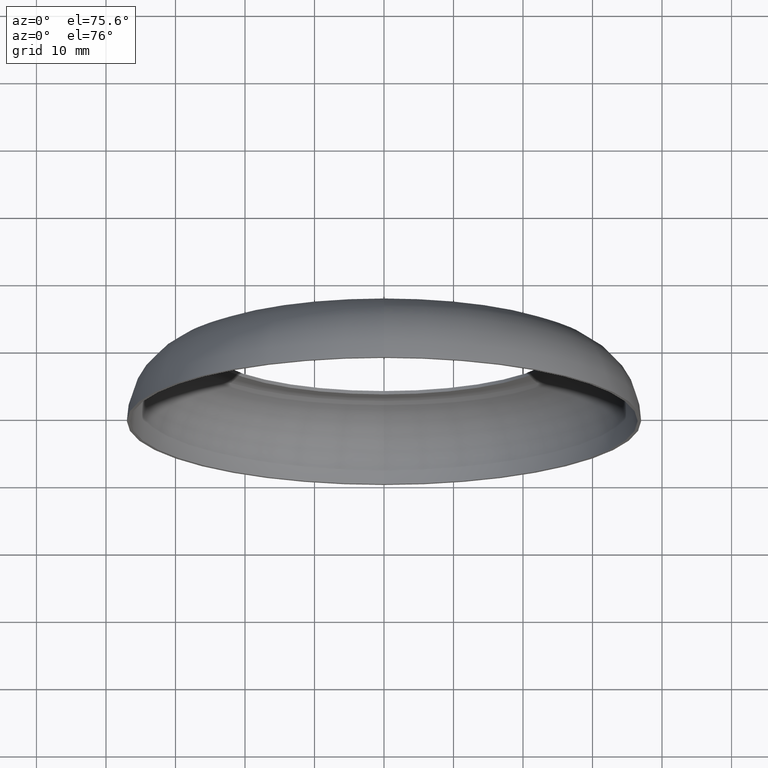
[diagram: clean part render]
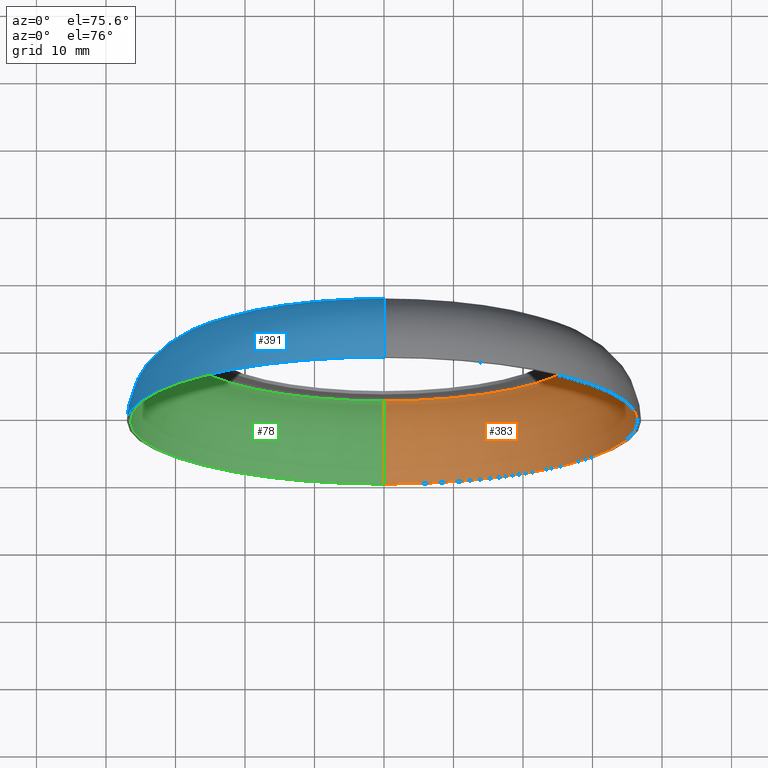
[diagram: same view with three faces highlighted in distinct colors, each labeled with its STEP entity id]
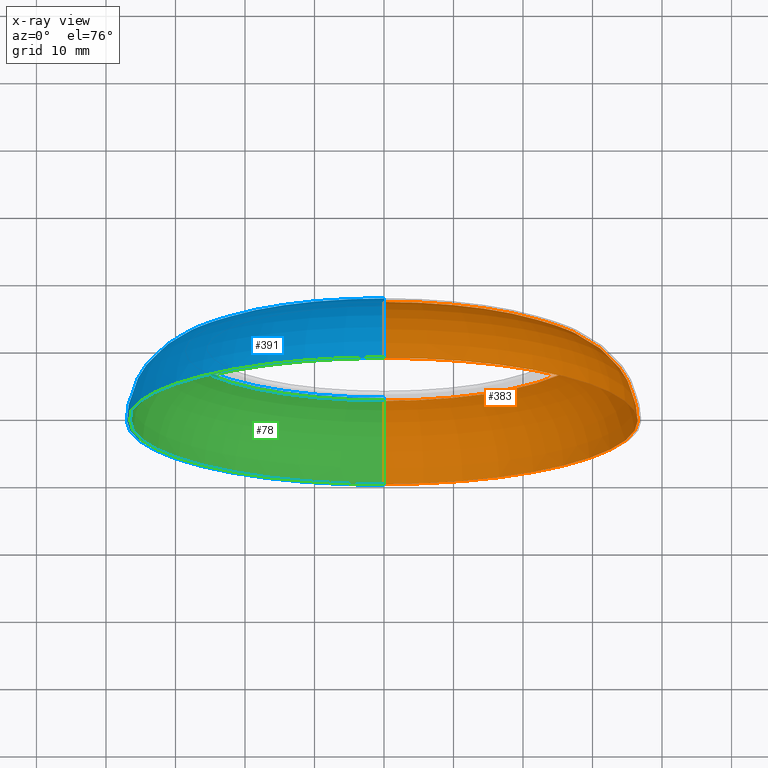
[diagram: x-ray of the same camera — body ghosted, the three highlighted faces saturated]
A machine part, auxiliary view with three faces highlighted in distinct colors.
The next image is the same camera in x-ray (body ghosted, the three faces saturated) — at least one of them is partly hidden behind the body in this view.
Their STEP definitions:

[orange] entity #383 — the highlighted toroidal blend (fillet) surface has major radius 25.7778 mm and minor (blend) radius 10.7222 mm.
#7 = CIRCLE ( 'NONE', #363, 10.72222222222221800 ) ;
#21 = DIRECTION ( 'NONE',  ( 1.000000000000000000, 0.0000000000000000000, -1.224646799147353200E-016 ) ) ;
#32 = EDGE_CURVE ( 'NONE', #188, #316, #394, .T. ) ;
#35 = FACE_OUTER_BOUND ( 'NONE', #46, .T. ) ;
#46 = EDGE_LOOP ( 'NONE', ( #307, #212, #146, #282 ) ) ;
#50 = AXIS2_PLACEMENT_3D ( 'NONE', #274, #214, #276 ) ;
#51 = TOROIDAL_SURFACE ( 'NONE', #319, 25.77777777777778200, 10.72222222222221800 ) ;
#60 = DIRECTION ( 'NONE',  ( -0.0000000000000000000, -1.000000000000000000, -0.0000000000000000000 ) ) ;
#83 = CIRCLE ( 'NONE', #187, 36.50000000000000000 ) ;
#100 = CARTESIAN_POINT ( 'NONE',  ( 0.0000000000000000000, 0.0000000000000000000, -36.50000000000000000 ) ) ;
#102 = CARTESIAN_POINT ( 'NONE',  ( 0.0000000000000000000, 0.0000000000000000000, 0.0000000000000000000 ) ) ;
#108 = CARTESIAN_POINT ( 'NONE',  ( 3.987309812825029800E-015, 10.33928571428571500, 28.61771092859018900 ) ) ;
#111 = EDGE_CURVE ( 'NONE', #188, #225, #7, .T. ) ;
#122 = EDGE_CURVE ( 'NONE', #225, #365, #83, .T. ) ;
#146 = ORIENTED_EDGE ( 'NONE', *, *, #111, .T. ) ;
#173 = CARTESIAN_POINT ( 'NONE',  ( 3.156867304468733000E-015, 0.0000000000000000000, 25.77777777777778200 ) ) ;
#184 = DIRECTION ( 'NONE',  ( 0.0000000000000000000, 0.0000000000000000000, -1.000000000000000000 ) ) ;
#187 = AXIS2_PLACEMENT_3D ( 'NONE', #373, #60, #184 ) ;
#188 = VERTEX_POINT ( 'NONE', #216 ) ;
#190 = CIRCLE ( 'NONE', #393, 10.72222222222221800 ) ;
#209 = DIRECTION ( 'NONE',  ( -1.000000000000000000, 0.0000000000000000000, 0.0000000000000000000 ) ) ;
#212 = ORIENTED_EDGE ( 'NONE', *, *, #32, .F. ) ;
#214 = DIRECTION ( 'NONE',  ( -0.0000000000000000000, -1.000000000000000000, -0.0000000000000000000 ) ) ;
#216 = CARTESIAN_POINT ( 'NONE',  ( 0.0000000000000000000, 10.33928571428571500, -28.61771092859018900 ) ) ;
#225 = VERTEX_POINT ( 'NONE', #100 ) ;
#274 = CARTESIAN_POINT ( 'NONE',  ( 0.0000000000000000000, 10.33928571428571500, 0.0000000000000000000 ) ) ;
#276 = DIRECTION ( 'NONE',  ( 0.0000000000000000000, 0.0000000000000000000, -1.000000000000000000 ) ) ;
#282 = ORIENTED_EDGE ( 'NONE', *, *, #122, .T. ) ;
#307 = ORIENTED_EDGE ( 'NONE', *, *, #315, .F. ) ;
#308 = DIRECTION ( 'NONE',  ( 0.0000000000000000000, 0.0000000000000000000, 1.000000000000000000 ) ) ;
#315 = EDGE_CURVE ( 'NONE', #316, #365, #190, .T. ) ;
#316 = VERTEX_POINT ( 'NONE', #108 ) ;
#319 = AXIS2_PLACEMENT_3D ( 'NONE', #102, #356, #328 ) ;
#328 = DIRECTION ( 'NONE',  ( 0.0000000000000000000, 0.0000000000000000000, -1.000000000000000000 ) ) ;
#329 = DIRECTION ( 'NONE',  ( -1.224646799147353500E-016, 0.0000000000000000000, -1.000000000000000000 ) ) ;
#356 = DIRECTION ( 'NONE',  ( -0.0000000000000000000, -1.000000000000000000, -0.0000000000000000000 ) ) ;
#358 = CARTESIAN_POINT ( 'NONE',  ( 4.469960816887838400E-015, 0.0000000000000000000, 36.50000000000000000 ) ) ;
#363 = AXIS2_PLACEMENT_3D ( 'NONE', #367, #209, #308 ) ;
#365 = VERTEX_POINT ( 'NONE', #358 ) ;
#367 = CARTESIAN_POINT ( 'NONE',  ( 0.0000000000000000000, 0.0000000000000000000, -25.77777777777778200 ) ) ;
#373 = CARTESIAN_POINT ( 'NONE',  ( 0.0000000000000000000, 0.0000000000000000000, 0.0000000000000000000 ) ) ;
#383 = ADVANCED_FACE ( 'NONE', ( #35 ), #51, .F. ) ;
#393 = AXIS2_PLACEMENT_3D ( 'NONE', #173, #21, #329 ) ;
#394 = CIRCLE ( 'NONE', #50, 28.61771092859018900 ) ;

[blue] entity #391 — the highlighted toroidal blend (fillet) surface has major radius 25.7778 mm and minor (blend) radius 11.2222 mm.
#1 = CIRCLE ( 'NONE', #109, 37.00000000000000000 ) ;
#2 = AXIS2_PLACEMENT_3D ( 'NONE', #231, #300, #261 ) ;
#5 = AXIS2_PLACEMENT_3D ( 'NONE', #256, #318, #324 ) ;
#24 = CARTESIAN_POINT ( 'NONE',  ( 0.0000000000000000000, 0.0000000000000000000, -25.77777777777778200 ) ) ;
#56 = CARTESIAN_POINT ( 'NONE',  ( 0.0000000000000000000, 0.0000000000000000000, -37.00000000000000000 ) ) ;
#57 = VERTEX_POINT ( 'NONE', #56 ) ;
#59 = DIRECTION ( 'NONE',  ( -0.0000000000000000000, -1.000000000000000000, -0.0000000000000000000 ) ) ;
#61 = CARTESIAN_POINT ( 'NONE',  ( 4.531193156845207600E-015, 0.0000000000000000000, 37.00000000000000000 ) ) ;
#63 = VERTEX_POINT ( 'NONE', #61 ) ;
#69 = EDGE_CURVE ( 'NONE', #63, #57, #1, .T. ) ;
#79 = CARTESIAN_POINT ( 'NONE',  ( 4.026035111142166800E-015, 10.82142857142874900, 28.75014304443123000 ) ) ;
#86 = ORIENTED_EDGE ( 'NONE', *, *, #302, .T. ) ;
#98 = EDGE_CURVE ( 'NONE', #320, #63, #177, .T. ) ;
#101 = ORIENTED_EDGE ( 'NONE', *, *, #226, .T. ) ;
#109 = AXIS2_PLACEMENT_3D ( 'NONE', #402, #59, #115 ) ;
#115 = DIRECTION ( 'NONE',  ( 0.0000000000000000000, 0.0000000000000000000, -1.000000000000000000 ) ) ;
#142 = DIRECTION ( 'NONE',  ( -1.000000000000000000, 0.0000000000000000000, 0.0000000000000000000 ) ) ;
#149 = AXIS2_PLACEMENT_3D ( 'NONE', #215, #245, #401 ) ;
#177 = CIRCLE ( 'NONE', #149, 11.22222222222221800 ) ;
#191 = ORIENTED_EDGE ( 'NONE', *, *, #69, .F. ) ;
#192 = CARTESIAN_POINT ( 'NONE',  ( 0.0000000000000000000, 10.82142857142874900, -28.75014304443123000 ) ) ;
#197 = AXIS2_PLACEMENT_3D ( 'NONE', #24, #142, #392 ) ;
#215 = CARTESIAN_POINT ( 'NONE',  ( 3.156867304468733000E-015, 0.0000000000000000000, 25.77777777777778200 ) ) ;
#224 = VERTEX_POINT ( 'NONE', #192 ) ;
#226 = EDGE_CURVE ( 'NONE', #320, #224, #339, .T. ) ;
#231 = CARTESIAN_POINT ( 'NONE',  ( 0.0000000000000000000, 0.0000000000000000000, 0.0000000000000000000 ) ) ;
#245 = DIRECTION ( 'NONE',  ( 1.000000000000000000, 0.0000000000000000000, -1.224646799147353200E-016 ) ) ;
#256 = CARTESIAN_POINT ( 'NONE',  ( 0.0000000000000000000, 10.82142857142874900, 0.0000000000000000000 ) ) ;
#260 = FACE_OUTER_BOUND ( 'NONE', #387, .T. ) ;
#261 = DIRECTION ( 'NONE',  ( 0.0000000000000000000, 0.0000000000000000000, -1.000000000000000000 ) ) ;
#269 = TOROIDAL_SURFACE ( 'NONE', #2, 25.77777777777778200, 11.22222222222221800 ) ;
#300 = DIRECTION ( 'NONE',  ( -0.0000000000000000000, -1.000000000000000000, -0.0000000000000000000 ) ) ;
#302 = EDGE_CURVE ( 'NONE', #224, #57, #306, .T. ) ;
#306 = CIRCLE ( 'NONE', #197, 11.22222222222221800 ) ;
#318 = DIRECTION ( 'NONE',  ( -0.0000000000000000000, -1.000000000000000000, -0.0000000000000000000 ) ) ;
#320 = VERTEX_POINT ( 'NONE', #79 ) ;
#321 = ORIENTED_EDGE ( 'NONE', *, *, #98, .F. ) ;
#324 = DIRECTION ( 'NONE',  ( 0.0000000000000000000, 0.0000000000000000000, -1.000000000000000000 ) ) ;
#339 = CIRCLE ( 'NONE', #5, 28.75014304443123000 ) ;
#387 = EDGE_LOOP ( 'NONE', ( #321, #101, #86, #191 ) ) ;
#391 = ADVANCED_FACE ( 'NONE', ( #260 ), #269, .T. ) ;
#392 = DIRECTION ( 'NONE',  ( 0.0000000000000000000, 0.0000000000000000000, 1.000000000000000000 ) ) ;
#401 = DIRECTION ( 'NONE',  ( -1.224646799147353500E-016, 0.0000000000000000000, -1.000000000000000000 ) ) ;
#402 = CARTESIAN_POINT ( 'NONE',  ( 0.0000000000000000000, 0.0000000000000000000, 0.0000000000000000000 ) ) ;

[green] entity #78 — the highlighted toroidal blend (fillet) surface has major radius 25.7778 mm and minor (blend) radius 10.7222 mm.
#7 = CIRCLE ( 'NONE', #363, 10.72222222222221800 ) ;
#14 = CIRCLE ( 'NONE', #399, 28.61771092859018900 ) ;
#21 = DIRECTION ( 'NONE',  ( 1.000000000000000000, 0.0000000000000000000, -1.224646799147353200E-016 ) ) ;
#40 = EDGE_CURVE ( 'NONE', #316, #188, #14, .T. ) ;
#64 = DIRECTION ( 'NONE',  ( 0.0000000000000000000, 0.0000000000000000000, -1.000000000000000000 ) ) ;
#78 = ADVANCED_FACE ( 'NONE', ( #303 ), #255, .F. ) ;
#100 = CARTESIAN_POINT ( 'NONE',  ( 0.0000000000000000000, 0.0000000000000000000, -36.50000000000000000 ) ) ;
#108 = CARTESIAN_POINT ( 'NONE',  ( 3.987309812825029800E-015, 10.33928571428571500, 28.61771092859018900 ) ) ;
#111 = EDGE_CURVE ( 'NONE', #188, #225, #7, .T. ) ;
#114 = DIRECTION ( 'NONE',  ( -0.0000000000000000000, -1.000000000000000000, -0.0000000000000000000 ) ) ;
#118 = DIRECTION ( 'NONE',  ( -0.0000000000000000000, -1.000000000000000000, -0.0000000000000000000 ) ) ;
#160 = EDGE_CURVE ( 'NONE', #365, #225, #327, .T. ) ;
#173 = CARTESIAN_POINT ( 'NONE',  ( 3.156867304468733000E-015, 0.0000000000000000000, 25.77777777777778200 ) ) ;
#174 = ORIENTED_EDGE ( 'NONE', *, *, #315, .T. ) ;
#176 = AXIS2_PLACEMENT_3D ( 'NONE', #346, #376, #186 ) ;
#185 = CARTESIAN_POINT ( 'NONE',  ( 0.0000000000000000000, 0.0000000000000000000, 0.0000000000000000000 ) ) ;
#186 = DIRECTION ( 'NONE',  ( 0.0000000000000000000, 0.0000000000000000000, -1.000000000000000000 ) ) ;
#188 = VERTEX_POINT ( 'NONE', #216 ) ;
#190 = CIRCLE ( 'NONE', #393, 10.72222222222221800 ) ;
#196 = ORIENTED_EDGE ( 'NONE', *, *, #40, .F. ) ;
#208 = ORIENTED_EDGE ( 'NONE', *, *, #111, .F. ) ;
#209 = DIRECTION ( 'NONE',  ( -1.000000000000000000, 0.0000000000000000000, 0.0000000000000000000 ) ) ;
#216 = CARTESIAN_POINT ( 'NONE',  ( 0.0000000000000000000, 10.33928571428571500, -28.61771092859018900 ) ) ;
#225 = VERTEX_POINT ( 'NONE', #100 ) ;
#236 = ORIENTED_EDGE ( 'NONE', *, *, #160, .T. ) ;
#249 = EDGE_LOOP ( 'NONE', ( #196, #174, #236, #208 ) ) ;
#255 = TOROIDAL_SURFACE ( 'NONE', #334, 25.77777777777778200, 10.72222222222221800 ) ;
#303 = FACE_OUTER_BOUND ( 'NONE', #249, .T. ) ;
#308 = DIRECTION ( 'NONE',  ( 0.0000000000000000000, 0.0000000000000000000, 1.000000000000000000 ) ) ;
#315 = EDGE_CURVE ( 'NONE', #316, #365, #190, .T. ) ;
#316 = VERTEX_POINT ( 'NONE', #108 ) ;
#327 = CIRCLE ( 'NONE', #176, 36.50000000000000000 ) ;
#329 = DIRECTION ( 'NONE',  ( -1.224646799147353500E-016, 0.0000000000000000000, -1.000000000000000000 ) ) ;
#334 = AXIS2_PLACEMENT_3D ( 'NONE', #185, #114, #342 ) ;
#337 = CARTESIAN_POINT ( 'NONE',  ( 0.0000000000000000000, 10.33928571428571500, 0.0000000000000000000 ) ) ;
#342 = DIRECTION ( 'NONE',  ( 0.0000000000000000000, 0.0000000000000000000, -1.000000000000000000 ) ) ;
#346 = CARTESIAN_POINT ( 'NONE',  ( 0.0000000000000000000, 0.0000000000000000000, 0.0000000000000000000 ) ) ;
#358 = CARTESIAN_POINT ( 'NONE',  ( 4.469960816887838400E-015, 0.0000000000000000000, 36.50000000000000000 ) ) ;
#363 = AXIS2_PLACEMENT_3D ( 'NONE', #367, #209, #308 ) ;
#365 = VERTEX_POINT ( 'NONE', #358 ) ;
#367 = CARTESIAN_POINT ( 'NONE',  ( 0.0000000000000000000, 0.0000000000000000000, -25.77777777777778200 ) ) ;
#376 = DIRECTION ( 'NONE',  ( -0.0000000000000000000, -1.000000000000000000, -0.0000000000000000000 ) ) ;
#393 = AXIS2_PLACEMENT_3D ( 'NONE', #173, #21, #329 ) ;
#399 = AXIS2_PLACEMENT_3D ( 'NONE', #337, #118, #64 ) ;